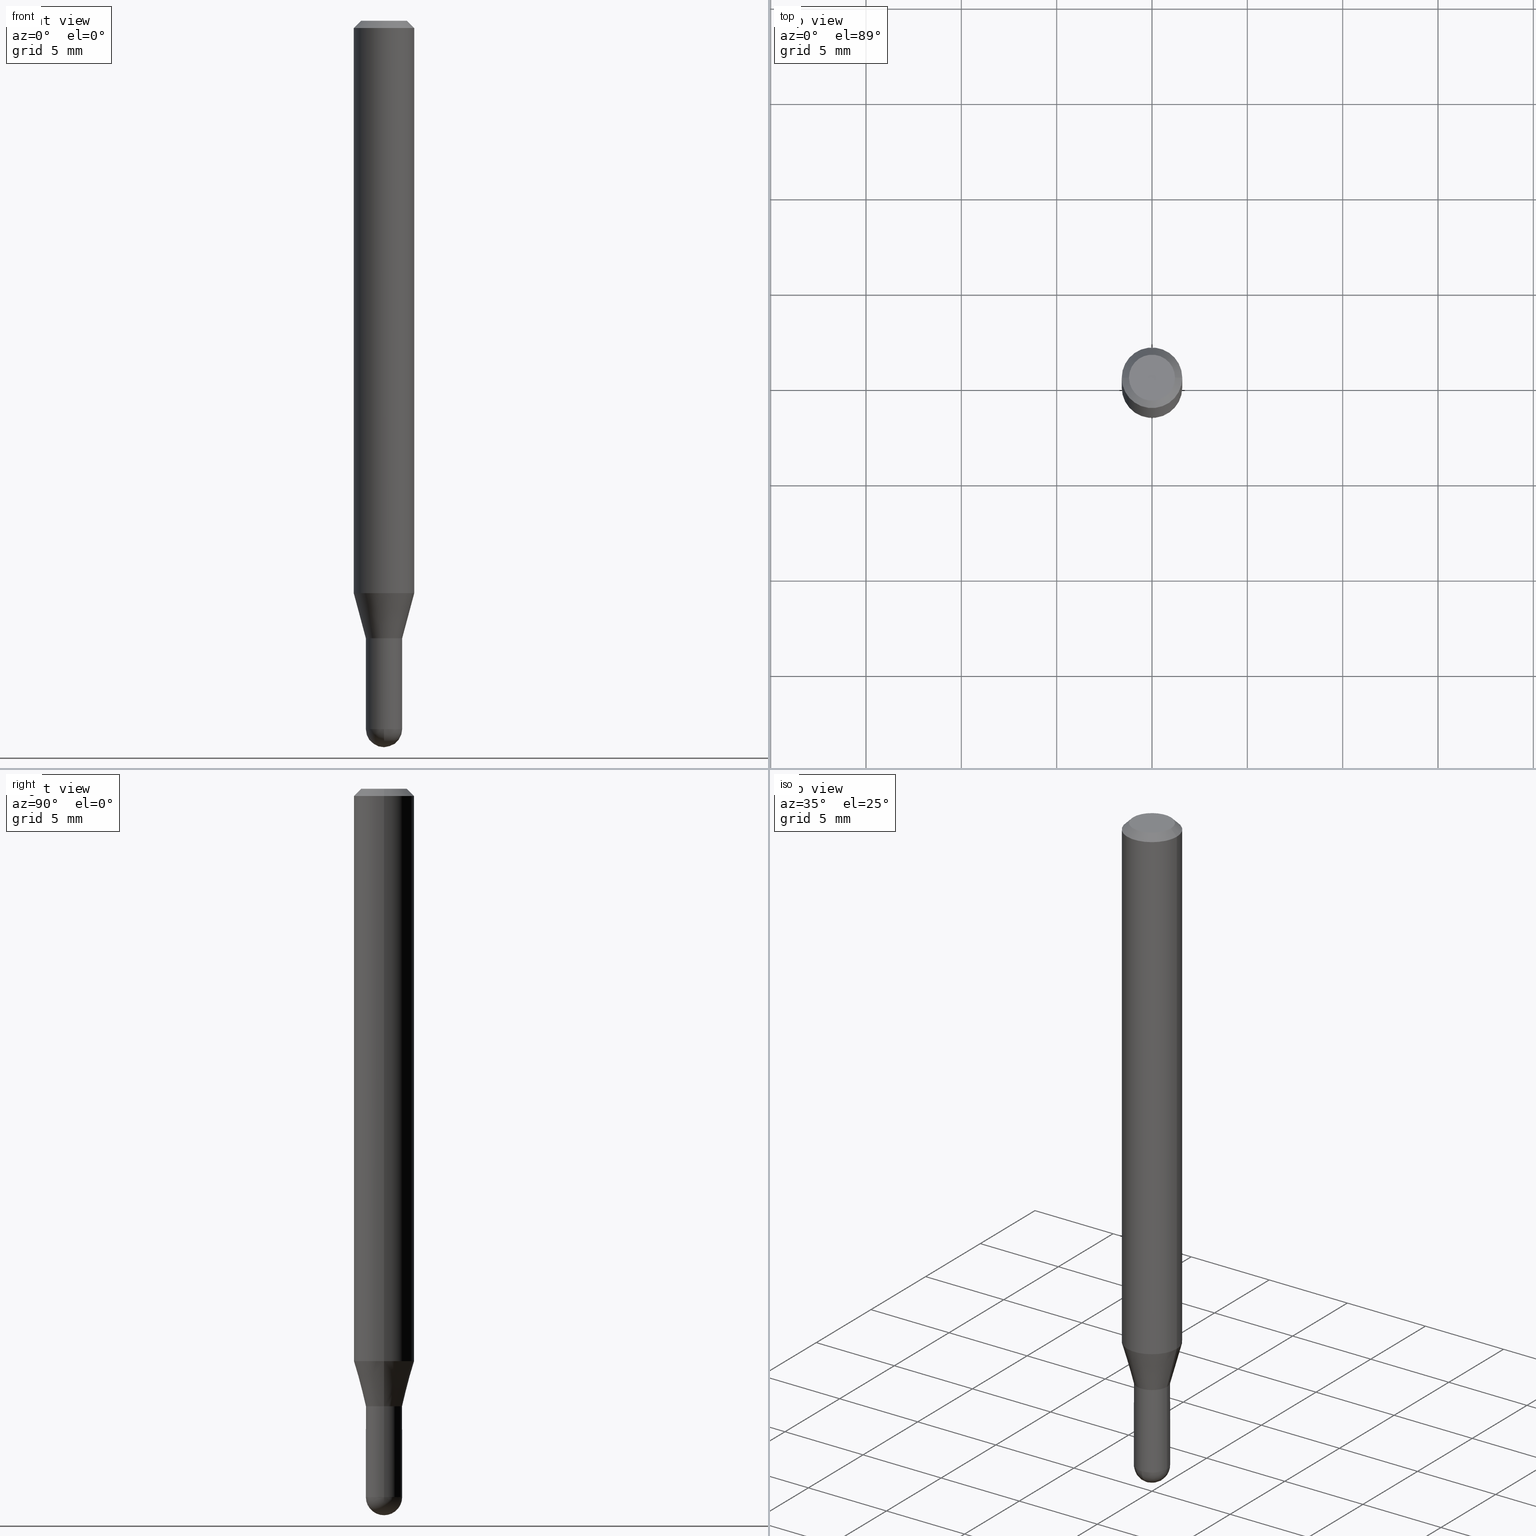
[diagram: canonical four-view strip — front | top / right | iso, engineering-drawing reading convention]
A machine part, canonical four-view strip (front | top / right | iso — engineering-drawing reading convention). The complete STEP part file that produces these views, byte-faithful:
ISO-10303-21;
HEADER;
FILE_DESCRIPTION (( 'STEP AP203' ),
    '1' );
FILE_NAME ('04009.STEP',
    '2024-03-08T18:34:34',
    ( '' ),
    ( '' ),
    'SwSTEP 2.0',
    'SolidWorks 2023',
    '' );
FILE_SCHEMA (( 'CONFIG_CONTROL_DESIGN' ));
ENDSEC;

DATA;
#1 = DIRECTION ( 'NONE',  ( -0.2588190451025291217, 5.211531920934597585E-15, 0.9659258262890659807 ) ) ;
#2 = CC_DESIGN_PERSON_AND_ORGANIZATION_ASSIGNMENT ( #330, #494, ( #432 ) ) ;
#3 = DIRECTION ( 'NONE',  ( -0.7071067811865626718, 7.493145998870409380E-15, 0.7071067811865323627 ) ) ;
#4 = CARTESIAN_POINT ( 'NONE',  ( 3.576498129045762161E-29, -5.106291458058100676E-15, -1.462500000000000133 ) ) ;
#5 = CIRCLE ( 'NONE', #115, 0.06250000000000000000 ) ;
#6 = CARTESIAN_POINT ( 'NONE',  ( 0.03750000000000019984, -4.713499807438247385E-15, -1.275000000000000133 ) ) ;
#7 = CC_DESIGN_APPROVAL ( #361, ( #134 ) ) ;
#8 = VERTEX_POINT ( 'NONE', #198 ) ;
#9 = DIRECTION ( 'NONE',  ( -1.000000000000000000, 6.982962677686266711E-15, 0.000000000000000000 ) ) ;
#10 = ORIENTED_EDGE ( 'NONE', *, *, #408, .T. ) ;
#11 = COORDINATED_UNIVERSAL_TIME_OFFSET ( 5, 0, .BEHIND. ) ;
#12 = DIRECTION ( 'NONE',  ( 6.982962677686265922E-15, 1.000000000000000000, 0.000000000000000000 ) ) ;
#13 = DIRECTION ( 'NONE',  ( -2.445468806185136877E-29, 3.491481338843145188E-15, 1.000000000000000000 ) ) ;
#14 = ADVANCED_FACE ( 'NONE', ( #233 ), #179, .T. ) ;
#15 = EDGE_LOOP ( 'NONE', ( #298, #65, #296, #278 ) ) ;
#16 = CALENDAR_DATE ( 2024, 8, 3 ) ;
#17 = FACE_OUTER_BOUND ( 'NONE', #219, .T. ) ;
#18 = CARTESIAN_POINT ( 'NONE',  ( 0.03750000000000019984, -4.713499807438247385E-15, -1.275000000000000133 ) ) ;
#19 = FACE_OUTER_BOUND ( 'NONE', #290, .T. ) ;
#20 = ORIENTED_EDGE ( 'NONE', *, *, #109, .F. ) ;
#21 = CARTESIAN_POINT ( 'NONE',  ( 0.000000000000000000, 0.000000000000000000, 0.000000000000000000 ) ) ;
#22 = AXIS2_PLACEMENT_3D ( 'NONE', #94, #444, #246 ) ;
#23 = APPLICATION_CONTEXT ( 'configuration controlled 3d designs of mechanical parts and assemblies' ) ;
#24 = LINE ( 'NONE', #370, #190 ) ;
#25 = ORIENTED_EDGE ( 'NONE', *, *, #261, .T. ) ;
#26 = EDGE_CURVE ( 'NONE', #300, #333, #66, .T. ) ;
#27 = PERSON_AND_ORGANIZATION ( #30, #507 ) ;
#28 = ORIENTED_EDGE ( 'NONE', *, *, #131, .T. ) ;
#29 = CARTESIAN_POINT ( 'NONE',  ( 0.000000000000000000, 0.000000000000000000, 0.000000000000000000 ) ) ;
#30 = PERSON ( 'UNSPECIFIED', 'UNSPECIFIED', 'UNSPECIFIED', ('UNSPECIFIED'), ('UNSPECIFIED'), ('UNSPECIFIED') ) ;
#31 = ORIENTED_EDGE ( 'NONE', *, *, #204, .F. ) ;
#32 = DATE_AND_TIME ( #260, #295 ) ;
#33 = VECTOR ( 'NONE', #322, 39.37007874015748143 ) ;
#34 = FACE_OUTER_BOUND ( 'NONE', #82, .T. ) ;
#35 = DIRECTION ( 'NONE',  ( -2.445468806185136597E-29, 3.491481338843145583E-15, 1.000000000000000000 ) ) ;
#36 = ORIENTED_EDGE ( 'NONE', *, *, #385, .T. ) ;
#37 = FACE_OUTER_BOUND ( 'NONE', #15, .T. ) ;
#38 = EDGE_CURVE ( 'NONE', #186, #333, #308, .T. ) ;
#39 = ORIENTED_EDGE ( 'NONE', *, *, #464, .T. ) ;
#40 = AXIS2_PLACEMENT_3D ( 'NONE', #365, #285, #49 ) ;
#41 = CARTESIAN_POINT ( 'NONE',  ( 3.117972727886050170E-29, -4.451638707025012383E-15, -1.275000000000000577 ) ) ;
#42 = LOCAL_TIME ( 13, 34, 34.00000000000000000, #11 ) ;
#43 = ADVANCED_FACE ( 'NONE', ( #34 ), #428, .T. ) ;
#44 = DIRECTION ( 'NONE',  ( 1.000000000000000000, -6.982962677686268288E-15, 4.876176775795935793E-29 ) ) ;
#45 = ADVANCED_FACE ( 'NONE', ( #313 ), #280, .T. ) ;
#46 = CIRCLE ( 'NONE', #284, 0.06250000000000000000 ) ;
#47 = VERTEX_POINT ( 'NONE', #394 ) ;
#48 = PRODUCT_DEFINITION ( 'UNKNOWN', '', #134, #68 ) ;
#49 = DIRECTION ( 'NONE',  ( 1.000000000000000000, -6.982962677686268288E-15, 0.000000000000000000 ) ) ;
#50 = PERSON_AND_ORGANIZATION_ROLE ( 'design_owner' ) ;
#51 = CARTESIAN_POINT ( 'NONE',  ( 3.668203209277721290E-31, -5.237222008264741202E-17, -0.01500000000000006710 ) ) ;
#52 = DIRECTION ( 'NONE',  ( -1.000000000000000000, 7.105427357601001070E-15, -4.926315508542082329E-29 ) ) ;
#53 = CIRCLE ( 'NONE', #303, 0.03750000000000004025 ) ;
#54 = AXIS2_PLACEMENT_3D ( 'NONE', #62, #144, #141 ) ;
#55 = CC_DESIGN_APPROVAL ( #275, ( #432 ) ) ;
#56 = DIRECTION ( 'NONE',  ( 1.000000000000000000, -6.982962677686257244E-15, 0.000000000000000000 ) ) ;
#57 = ORIENTED_EDGE ( 'NONE', *, *, #417, .T. ) ;
#58 = DIRECTION ( 'NONE',  ( -2.445468806185136597E-29, 3.491481338843145583E-15, 1.000000000000000000 ) ) ;
#59 = PERSON_AND_ORGANIZATION ( #30, #507 ) ;
#60 = DIRECTION ( 'NONE',  ( -7.105427357601000281E-15, -1.000000000000000000, 0.000000000000000000 ) ) ;
#61 = EDGE_LOOP ( 'NONE', ( #142, #452, #263, #420 ) ) ;
#62 = CARTESIAN_POINT ( 'NONE',  ( 2.889807382060866226E-29, -4.125879063268994698E-15, -1.181698729810782167 ) ) ;
#63 = CARTESIAN_POINT ( 'NONE',  ( 0.06250000000000000000, -4.364351673553916694E-16, 3.047610484872459871E-30 ) ) ;
#64 = EDGE_CURVE ( 'NONE', #375, #8, #435, .T. ) ;
#65 = ORIENTED_EDGE ( 'NONE', *, *, #118, .T. ) ;
#66 = CIRCLE ( 'NONE', #91, 0.03750000000000019290 ) ;
#67 = CARTESIAN_POINT ( 'NONE',  ( 3.668203209277721290E-31, -5.237222008264741202E-17, -0.01500000000000006710 ) ) ;
#68 = DESIGN_CONTEXT ( 'detailed design', #23, 'design' ) ;
#69 = CYLINDRICAL_SURFACE ( 'NONE', #155, 0.03750000000000019984 ) ;
#70 = ORIENTED_EDGE ( 'NONE', *, *, #218, .T. ) ;
#71 = ORIENTED_EDGE ( 'NONE', *, *, #464, .F. ) ;
#72 = DIRECTION ( 'NONE',  ( -2.445468806185136597E-29, 3.491481338843145583E-15, 1.000000000000000000 ) ) ;
#73 = ORIENTED_EDGE ( 'NONE', *, *, #26, .T. ) ;
#74 = CARTESIAN_POINT ( 'NONE',  ( 3.117972727886049049E-29, -4.451638707025011594E-15, -1.275000000000000133 ) ) ;
#75 = AXIS2_PLACEMENT_3D ( 'NONE', #419, #159, #203 ) ;
#76 = ORIENTED_EDGE ( 'NONE', *, *, #136, .T. ) ;
#77 = EDGE_CURVE ( 'NONE', #93, #407, #175, .T. ) ;
#78 = CONICAL_SURFACE ( 'NONE', #22, 0.03750000000000019984, 0.2617993877991580676 ) ;
#79 = DIRECTION ( 'NONE',  ( 1.000000000000000000, -6.982962677686268288E-15, 0.000000000000000000 ) ) ;
#80 = CARTESIAN_POINT ( 'NONE',  ( -0.03749999999999999861, -4.512511556631519117E-15, -1.275000000000000133 ) ) ;
#81 = PRODUCT_RELATED_PRODUCT_CATEGORY ( 'detail', '', ( #484 ) ) ;
#82 = EDGE_LOOP ( 'NONE', ( #471, #10, #371, #342 ) ) ;
#83 = DIRECTION ( 'NONE',  ( 1.000000000000000000, -6.982962677686254089E-15, 0.000000000000000000 ) ) ;
#84 = FACE_OUTER_BOUND ( 'NONE', #113, .T. ) ;
#85 = VECTOR ( 'NONE', #1, 39.37007874015748143 ) ;
#86 = AXIS2_PLACEMENT_3D ( 'NONE', #483, #103, #400 ) ;
#87 =( CONVERSION_BASED_UNIT ( 'INCH', #431 ) LENGTH_UNIT ( ) NAMED_UNIT ( #318 ) );
#88 = ADVANCED_BREP_SHAPE_REPRESENTATION ( '04009', ( #430, #104, #351 ), #223 ) ;
#89 = EDGE_LOOP ( 'NONE', ( #157, #449, #427, #491 ) ) ;
#90 = EDGE_CURVE ( 'NONE', #121, #147, #53, .T. ) ;
#91 = AXIS2_PLACEMENT_3D ( 'NONE', #163, #72, #462 ) ;
#92 = VECTOR ( 'NONE', #229, 39.37007874015748143 ) ;
#93 = VERTEX_POINT ( 'NONE', #256 ) ;
#94 = CARTESIAN_POINT ( 'NONE',  ( 3.117972727886049049E-29, -4.451638707025011594E-15, -1.275000000000000133 ) ) ;
#95 = EDGE_LOOP ( 'NONE', ( #490, #286 ) ) ;
#96 = PLANE ( 'NONE',  #360 ) ;
#97 = ADVANCED_FACE ( 'NONE', ( #19 ), #448, .T. ) ;
#98 = DIRECTION ( 'NONE',  ( 6.982962677686265922E-15, 1.000000000000000000, 0.000000000000000000 ) ) ;
#99 = AXIS2_PLACEMENT_3D ( 'NONE', #409, #292, #492 ) ;
#100 = ORIENTED_EDGE ( 'NONE', *, *, #90, .F. ) ;
#101 = AXIS2_PLACEMENT_3D ( 'NONE', #392, #130, #44 ) ;
#102 = DATE_AND_TIME ( #224, #480 ) ;
#103 = DIRECTION ( 'NONE',  ( 2.438088387897960049E-29, -3.491481338843145188E-15, -1.000000000000000000 ) ) ;
#104 = MANIFOLD_SOLID_BREP ( 'Body-Move/Copy2[2]', #271 ) ;
#105 = CARTESIAN_POINT ( 'NONE',  ( 1.601787791729603882E-45, -2.286928448837997150E-31, -6.550023405239620703E-17 ) ) ;
#106 = EDGE_LOOP ( 'NONE', ( #329, #474, #481, #399 ) ) ;
#107 = DATE_AND_TIME ( #443, #209 ) ;
#108 = CARTESIAN_POINT ( 'NONE',  ( -0.06250000000000000000, -3.681789853418932082E-15, -1.181698729810782167 ) ) ;
#109 = EDGE_CURVE ( 'NONE', #441, #116, #348, .T. ) ;
#110 = ORIENTED_EDGE ( 'NONE', *, *, #38, .F. ) ;
#111 = COORDINATED_UNIVERSAL_TIME_OFFSET ( 5, 0, .BEHIND. ) ;
#112 = DIRECTION ( 'NONE',  ( -2.445468806185136597E-29, 3.491481338843145583E-15, 1.000000000000000000 ) ) ;
#113 = EDGE_LOOP ( 'NONE', ( #71, #362, #25, #274, #20 ) ) ;
#114 = DIRECTION ( 'NONE',  ( 1.000000000000000000, -6.982962677686254089E-15, 0.000000000000000000 ) ) ;
#115 = AXIS2_PLACEMENT_3D ( 'NONE', #145, #193, #341 ) ;
#116 = VERTEX_POINT ( 'NONE', #390 ) ;
#117 = CARTESIAN_POINT ( 'NONE',  ( 3.576498129045762161E-29, -5.106291458058100676E-15, -1.462500000000000133 ) ) ;
#118 = EDGE_CURVE ( 'NONE', #305, #493, #469, .T. ) ;
#119 = DIRECTION ( 'NONE',  ( 1.000000000000000000, -6.982962677686280121E-15, 0.000000000000000000 ) ) ;
#120 = PLANE ( 'NONE',  #324 ) ;
#121 = VERTEX_POINT ( 'NONE', #461 ) ;
#122 = LINE ( 'NONE', #468, #436 ) ;
#123 = AXIS2_PLACEMENT_3D ( 'NONE', #440, #221, #98 ) ;
#124 = LINE ( 'NONE', #320, #180 ) ;
#125 = EDGE_CURVE ( 'NONE', #8, #375, #472, .T. ) ;
#126 = DIRECTION ( 'NONE',  ( -2.445468806185136877E-29, 3.491481338843145188E-15, 1.000000000000000000 ) ) ;
#127 = AXIS2_PLACEMENT_3D ( 'NONE', #188, #349, #499 ) ;
#128 = AXIS2_PLACEMENT_3D ( 'NONE', #470, #510, #467 ) ;
#129 = CIRCLE ( 'NONE', #272, 0.03749999999999993616 ) ;
#130 = DIRECTION ( 'NONE',  ( -2.445468806185136597E-29, 3.491481338843145583E-15, 1.000000000000000000 ) ) ;
#131 = EDGE_CURVE ( 'NONE', #415, #459, #442, .T. ) ;
#132 = FACE_OUTER_BOUND ( 'NONE', #201, .T. ) ;
#133 = AXIS2_PLACEMENT_3D ( 'NONE', #105, #255, #336 ) ;
#134 = PRODUCT_DEFINITION_FORMATION_WITH_SPECIFIED_SOURCE ( 'ANY', '', #484, .NOT_KNOWN. ) ;
#135 = DIRECTION ( 'NONE',  ( 1.000000000000000000, -6.982962677686265922E-15, 4.876176775795935232E-29 ) ) ;
#136 = EDGE_CURVE ( 'NONE', #344, #493, #412, .T. ) ;
#137 = CARTESIAN_POINT ( 'NONE',  ( -0.03699999999999999817, -4.188737894793775870E-15, -1.275000000000000577 ) ) ;
#138 = FACE_OUTER_BOUND ( 'NONE', #194, .T. ) ;
#139 = EDGE_LOOP ( 'NONE', ( #410, #267, #434, #477 ) ) ;
#140 = DATE_TIME_ROLE ( 'classification_date' ) ;
#141 = DIRECTION ( 'NONE',  ( 1.000000000000000000, -6.982962677686270655E-15, 0.000000000000000000 ) ) ;
#142 = ORIENTED_EDGE ( 'NONE', *, *, #226, .T. ) ;
#143 = CIRCLE ( 'NONE', #405, 0.06250000000000000000 ) ;
#144 = DIRECTION ( 'NONE',  ( -2.445468806185136597E-29, 3.491481338843145583E-15, 1.000000000000000000 ) ) ;
#145 = CARTESIAN_POINT ( 'NONE',  ( 2.889807382060866226E-29, -4.125879063268994698E-15, -1.181698729810782167 ) ) ;
#146 = PRODUCT_DEFINITION_SHAPE ( 'NONE', 'NONE',  #48 ) ;
#147 = VERTEX_POINT ( 'NONE', #288 ) ;
#148 = APPROVAL_STATUS ( 'not_yet_approved' ) ;
#149 = DIRECTION ( 'NONE',  ( 2.445468806185136597E-29, -3.491481338843145583E-15, -1.000000000000000000 ) ) ;
#150 = ORIENTED_EDGE ( 'NONE', *, *, #226, .F. ) ;
#151 = DATE_TIME_ROLE ( 'creation_date' ) ;
#152 = ORIENTED_EDGE ( 'NONE', *, *, #131, .F. ) ;
#153 = CARTESIAN_POINT ( 'NONE',  ( 0.000000000000000000, 0.000000000000000000, 0.000000000000000000 ) ) ;
#154 = ORIENTED_EDGE ( 'NONE', *, *, #109, .T. ) ;
#155 = AXIS2_PLACEMENT_3D ( 'NONE', #29, #343, #455 ) ;
#156 = CC_DESIGN_APPROVAL ( #503, ( #48 ) ) ;
#157 = ORIENTED_EDGE ( 'NONE', *, *, #64, .T. ) ;
#158 = EDGE_CURVE ( 'NONE', #375, #333, #287, .T. ) ;
#159 = DIRECTION ( 'NONE',  ( -2.445468806185136597E-29, 3.491481338843145583E-15, 1.000000000000000000 ) ) ;
#160 = CARTESIAN_POINT ( 'NONE',  ( 3.576498129045762161E-29, -5.106291458058100676E-15, -1.462500000000000133 ) ) ;
#161 = DIRECTION ( 'NONE',  ( 0.7071067811865475727, -7.319954787623256045E-15, -0.7071067811865474617 ) ) ;
#162 = CC_DESIGN_PERSON_AND_ORGANIZATION_ASSIGNMENT ( #197, #215, ( #48 ) ) ;
#163 = CARTESIAN_POINT ( 'NONE',  ( 3.116749993482957368E-29, -4.449892966355590090E-15, -1.274500000000000188 ) ) ;
#164 = EDGE_CURVE ( 'NONE', #121, #459, #355, .T. ) ;
#165 = AXIS2_PLACEMENT_3D ( 'NONE', #21, #479, #135 ) ;
#166 = DIRECTION ( 'NONE',  ( -2.445468806185136597E-29, 3.491481338843145583E-15, 1.000000000000000000 ) ) ;
#167 = SHAPE_DEFINITION_REPRESENTATION ( #146, #88 ) ;
#168 = DIRECTION ( 'NONE',  ( 1.000000000000000000, -6.982962677686268288E-15, 4.876176775795935793E-29 ) ) ;
#169 = EDGE_LOOP ( 'NONE', ( #496, #70, #73, #110 ) ) ;
#170 = DIRECTION ( 'NONE',  ( -2.445468806185136597E-29, 3.491481338843145583E-15, 1.000000000000000000 ) ) ;
#171 = CYLINDRICAL_SURFACE ( 'NONE', #101, 0.03749999999999996392 ) ;
#172 = AXIS2_PLACEMENT_3D ( 'NONE', #4, #247, #373 ) ;
#173 = CIRCLE ( 'NONE', #208, 0.03750000000000019984 ) ;
#174 = ADVANCED_FACE ( 'NONE', ( #138 ), #386, .T. ) ;
#175 = LINE ( 'NONE', #363, #85 ) ;
#176 = CC_DESIGN_PERSON_AND_ORGANIZATION_ASSIGNMENT ( #376, #345, ( #134 ) ) ;
#177 = ADVANCED_FACE ( 'NONE', ( #301 ), #96, .F. ) ;
#178 = DIRECTION ( 'NONE',  ( 0.7071067811865626718, -2.468850131082415227E-15, 0.7071067811865323627 ) ) ;
#179 = CONICAL_SURFACE ( 'NONE', #75, 0.03750000000000019984, 0.2617993877991580676 ) ;
#180 = VECTOR ( 'NONE', #126, 39.37007874015748143 ) ;
#181 = SPHERICAL_SURFACE ( 'NONE', #264, 0.03750000000000004025 ) ;
#182 = CARTESIAN_POINT ( 'NONE',  ( 3.576498129045762161E-29, -5.106291458058100676E-15, -1.462500000000000133 ) ) ;
#183 = ORIENTED_EDGE ( 'NONE', *, *, #310, .F. ) ;
#184 = APPROVAL_DATE_TIME ( #107, #503 ) ;
#185 = FACE_OUTER_BOUND ( 'NONE', #413, .T. ) ;
#186 = VERTEX_POINT ( 'NONE', #18 ) ;
#187 = SPHERICAL_SURFACE ( 'NONE', #511, 0.03750000000000004025 ) ;
#188 = CARTESIAN_POINT ( 'NONE',  ( 0.000000000000000000, 0.000000000000000000, 0.000000000000000000 ) ) ;
#189 = ORIENTED_EDGE ( 'NONE', *, *, #476, .F. ) ;
#190 = VECTOR ( 'NONE', #402, 39.37007874015748143 ) ;
#191 = CALENDAR_DATE ( 2024, 8, 3 ) ;
#192 = CARTESIAN_POINT ( 'NONE',  ( -0.06250000000000000000, -1.645036431825758273E-15, -0.01500000000000006710 ) ) ;
#193 = DIRECTION ( 'NONE',  ( -2.445468806185136597E-29, 3.491481338843145583E-15, 1.000000000000000000 ) ) ;
#194 = EDGE_LOOP ( 'NONE', ( #257, #189, #446, #57 ) ) ;
#195 = CARTESIAN_POINT ( 'NONE',  ( 3.533226714813284763E-29, -5.168258586094955847E-15, -1.462500000000000133 ) ) ;
#196 = ORIENTED_EDGE ( 'NONE', *, *, #164, .T. ) ;
#197 = PERSON_AND_ORGANIZATION ( #30, #507 ) ;
#198 = CARTESIAN_POINT ( 'NONE',  ( -0.03699999999999999817, -4.186088667619663091E-15, -1.275000000000000577 ) ) ;
#199 = CIRCLE ( 'NONE', #456, 0.04749999999999999362 ) ;
#200 = APPROVAL_PERSON_ORGANIZATION ( #369, #361, #453 ) ;
#201 = EDGE_LOOP ( 'NONE', ( #225, #150, #216, #380 ) ) ;
#202 = DIRECTION ( 'NONE',  ( 1.000000000000000000, -6.982962677686266711E-15, 4.876176775795935793E-29 ) ) ;
#203 = DIRECTION ( 'NONE',  ( 1.000000000000000000, -6.982962677686257244E-15, 0.000000000000000000 ) ) ;
#204 = EDGE_CURVE ( 'NONE', #459, #269, #398, .T. ) ;
#205 = AXIS2_PLACEMENT_3D ( 'NONE', #182, #297, #451 ) ;
#206 = APPROVAL_PERSON_ORGANIZATION ( #357, #503, #508 ) ;
#207 = EDGE_CURVE ( 'NONE', #93, #186, #173, .T. ) ;
#208 = AXIS2_PLACEMENT_3D ( 'NONE', #327, #112, #56 ) ;
#209 = LOCAL_TIME ( 13, 34, 34.00000000000000000, #426 ) ;
#210 = ORIENTED_EDGE ( 'NONE', *, *, #366, .F. ) ;
#211 = CARTESIAN_POINT ( 'NONE',  ( 3.533226714813284763E-29, -5.168258586094955847E-15, -1.462500000000000133 ) ) ;
#212 = ORIENTED_EDGE ( 'NONE', *, *, #232, .T. ) ;
#213 = CC_DESIGN_DATE_AND_TIME_ASSIGNMENT ( #482, #140, ( #432 ) ) ;
#214 = VECTOR ( 'NONE', #377, 39.37007874015748143 ) ;
#215 = PERSON_AND_ORGANIZATION_ROLE ( 'creator' ) ;
#216 = ORIENTED_EDGE ( 'NONE', *, *, #38, .T. ) ;
#217 = CARTESIAN_POINT ( 'NONE',  ( 0.06250000000000000000, -4.562314230624385579E-15, -1.181698729810782167 ) ) ;
#218 = EDGE_CURVE ( 'NONE', #93, #300, #24, .T. ) ;
#219 = EDGE_LOOP ( 'NONE', ( #100, #196, #152, #384 ) ) ;
#220 = CARTESIAN_POINT ( 'NONE',  ( -0.06250000000000000000, 4.440892098500626162E-16, -3.074334431409316114E-30 ) ) ;
#221 = DIRECTION ( 'NONE',  ( 1.000000000000000000, -6.982962677686265922E-15, 4.883557194083112340E-29 ) ) ;
#222 = ORIENTED_EDGE ( 'NONE', *, *, #408, .F. ) ;
#223 =( GEOMETRIC_REPRESENTATION_CONTEXT ( 3 ) GLOBAL_UNCERTAINTY_ASSIGNED_CONTEXT ( ( #450 ) ) GLOBAL_UNIT_ASSIGNED_CONTEXT ( ( #87, #312, #466 ) ) REPRESENTATION_CONTEXT ( 'NONE', 'WORKASPACE' ) );
#224 = CALENDAR_DATE ( 2024, 8, 3 ) ;
#225 = ORIENTED_EDGE ( 'NONE', *, *, #218, .F. ) ;
#226 = EDGE_CURVE ( 'NONE', #186, #93, #241, .T. ) ;
#227 = COORDINATED_UNIVERSAL_TIME_OFFSET ( 5, 0, .BEHIND. ) ;
#228 = ORIENTED_EDGE ( 'NONE', *, *, #90, .T. ) ;
#229 = DIRECTION ( 'NONE',  ( -0.7071067811865475727, 2.468850131082257455E-15, -0.7071067811865474617 ) ) ;
#230 = ORIENTED_EDGE ( 'NONE', *, *, #164, .F. ) ;
#231 = DIRECTION ( 'NONE',  ( -2.445468806185136597E-29, 3.491481338843145583E-15, 1.000000000000000000 ) ) ;
#232 = EDGE_CURVE ( 'NONE', #305, #47, #315, .T. ) ;
#233 = FACE_OUTER_BOUND ( 'NONE', #139, .T. ) ;
#234 = LINE ( 'NONE', #306, #92 ) ;
#235 = APPROVAL_STATUS ( 'not_yet_approved' ) ;
#236 = CARTESIAN_POINT ( 'NONE',  ( 0.04749999999999999362, -4.035134999187580595E-16, -6.550023405239363091E-17 ) ) ;
#237 = DIRECTION ( 'NONE',  ( -2.445468806185136597E-29, 3.491481338843145583E-15, 1.000000000000000000 ) ) ;
#238 = CARTESIAN_POINT ( 'NONE',  ( 1.601787791729603882E-45, -2.286928448837997150E-31, -6.550023405239620703E-17 ) ) ;
#239 = AXIS2_PLACEMENT_3D ( 'NONE', #41, #359, #325 ) ;
#240 = EDGE_LOOP ( 'NONE', ( #338, #39, #210, #183, #28 ) ) ;
#241 = CIRCLE ( 'NONE', #396, 0.03750000000000019984 ) ;
#242 = ORIENTED_EDGE ( 'NONE', *, *, #476, .T. ) ;
#243 = CIRCLE ( 'NONE', #40, 0.03749999999999999861 ) ;
#244 = EDGE_CURVE ( 'NONE', #344, #407, #5, .T. ) ;
#245 = CARTESIAN_POINT ( 'NONE',  ( 0.03750000000000019290, -4.711754066768825881E-15, -1.274500000000000188 ) ) ;
#246 = DIRECTION ( 'NONE',  ( 1.000000000000000000, -6.982962677686257244E-15, 0.000000000000000000 ) ) ;
#247 = DIRECTION ( 'NONE',  ( -2.445468806185136597E-29, 3.491481338843145583E-15, 1.000000000000000000 ) ) ;
#248 = DIRECTION ( 'NONE',  ( -1.000000000000000000, 6.982962677686265922E-15, -4.883557194083112901E-29 ) ) ;
#249 = DIRECTION ( 'NONE',  ( 1.000000000000000000, -6.982962677686265922E-15, 4.876176775795935793E-29 ) ) ;
#250 = VECTOR ( 'NONE', #178, 39.37007874015748143 ) ;
#251 = EDGE_LOOP ( 'NONE', ( #230, #228, #485, #31 ) ) ;
#252 = APPROVAL_STATUS ( 'not_yet_approved' ) ;
#253 = DIRECTION ( 'NONE',  ( 6.982962677686265922E-15, 1.000000000000000000, 0.000000000000000000 ) ) ;
#254 = ADVANCED_FACE ( 'NONE', ( #37 ), #379, .T. ) ;
#255 = DIRECTION ( 'NONE',  ( -2.445468806185136597E-29, 3.491481338843145583E-15, 1.000000000000000000 ) ) ;
#256 = CARTESIAN_POINT ( 'NONE',  ( -0.03750000000000019984, -3.933487517266952343E-15, -1.275000000000000133 ) ) ;
#257 = ORIENTED_EDGE ( 'NONE', *, *, #118, .F. ) ;
#258 = COORDINATED_UNIVERSAL_TIME_OFFSET ( 5, 0, .BEHIND. ) ;
#259 = EDGE_LOOP ( 'NONE', ( #242, #212 ) ) ;
#260 = CALENDAR_DATE ( 2024, 8, 3 ) ;
#261 = EDGE_CURVE ( 'NONE', #147, #415, #129, .T. ) ;
#262 = VECTOR ( 'NONE', #387, 39.37007874015748143 ) ;
#263 = ORIENTED_EDGE ( 'NONE', *, *, #244, .F. ) ;
#264 = AXIS2_PLACEMENT_3D ( 'NONE', #211, #340, #12 ) ;
#265 = LOCAL_TIME ( 13, 34, 34.00000000000000000, #111 ) ;
#266 = CARTESIAN_POINT ( 'NONE',  ( 3.668203209277721290E-31, -5.237222008264741202E-17, -0.01500000000000006710 ) ) ;
#267 = ORIENTED_EDGE ( 'NONE', *, *, #207, .T. ) ;
#268 = DIRECTION ( 'NONE',  ( -2.445468806185136597E-29, 3.491481338843145583E-15, 1.000000000000000000 ) ) ;
#269 = VERTEX_POINT ( 'NONE', #354 ) ;
#270 = CARTESIAN_POINT ( 'NONE',  ( -0.03750000000000019290, -4.183439440445551890E-15, -1.274500000000000188 ) ) ;
#271 = CLOSED_SHELL ( 'NONE', ( #319, #424, #254, #43, #401, #14, #97, #174, #438, #177, #45, #339 ) ) ;
#272 = AXIS2_PLACEMENT_3D ( 'NONE', #117, #268, #418 ) ;
#273 = DIRECTION ( 'NONE',  ( 1.000000000000000000, -6.982962677686266711E-15, 0.000000000000000000 ) ) ;
#274 = ORIENTED_EDGE ( 'NONE', *, *, #310, .T. ) ;
#275 = APPROVAL ( #148, 'UNSPECIFIED' ) ;
#276 = APPLICATION_PROTOCOL_DEFINITION ( 'international standard', 'config_control_design', 1994, #364 ) ;
#277 = FACE_OUTER_BOUND ( 'NONE', #240, .T. ) ;
#278 = ORIENTED_EDGE ( 'NONE', *, *, #457, .F. ) ;
#279 = CARTESIAN_POINT ( 'NONE',  ( 2.618611004132704018E-16, 0.03749999999999485689, -1.462500000000000133 ) ) ;
#280 = CONICAL_SURFACE ( 'NONE', #395, 0.03699999999999999817, 0.7853981633974697063 ) ;
#281 = AXIS2_PLACEMENT_3D ( 'NONE', #160, #460, #119 ) ;
#282 = APPROVAL_PERSON_ORGANIZATION ( #27, #275, #299 ) ;
#283 =( LENGTH_UNIT ( ) NAMED_UNIT ( * ) SI_UNIT ( $, .METRE. ) );
#284 = AXIS2_PLACEMENT_3D ( 'NONE', #67, #231, #463 ) ;
#285 = DIRECTION ( 'NONE',  ( -2.445468806185136597E-29, 3.491481338843145583E-15, 1.000000000000000000 ) ) ;
#286 = ORIENTED_EDGE ( 'NONE', *, *, #125, .F. ) ;
#287 = LINE ( 'NONE', #368, #250 ) ;
#288 = CARTESIAN_POINT ( 'NONE',  ( -2.664535259100019132E-16, -0.03750000000000512645, -1.462500000000000133 ) ) ;
#289 = EDGE_CURVE ( 'NONE', #269, #147, #478, .T. ) ;
#290 = EDGE_LOOP ( 'NONE', ( #222, #36, #76, #302 ) ) ;
#291 = FACE_OUTER_BOUND ( 'NONE', #61, .T. ) ;
#292 = DIRECTION ( 'NONE',  ( -2.445468806185136597E-29, 3.491481338843145583E-15, 1.000000000000000000 ) ) ;
#293 = CIRCLE ( 'NONE', #54, 0.06250000000000000000 ) ;
#294 = MECHANICAL_CONTEXT ( 'NONE', #364, 'mechanical' ) ;
#295 = LOCAL_TIME ( 13, 34, 34.00000000000000000, #227 ) ;
#296 = ORIENTED_EDGE ( 'NONE', *, *, #433, .T. ) ;
#297 = DIRECTION ( 'NONE',  ( -2.445468806185136597E-29, 3.491481338843145583E-15, 1.000000000000000000 ) ) ;
#298 = ORIENTED_EDGE ( 'NONE', *, *, #232, .F. ) ;
#299 = APPROVAL_ROLE ( '' ) ;
#300 = VERTEX_POINT ( 'NONE', #270 ) ;
#301 = FACE_OUTER_BOUND ( 'NONE', #95, .T. ) ;
#302 = ORIENTED_EDGE ( 'NONE', *, *, #417, .F. ) ;
#303 = AXIS2_PLACEMENT_3D ( 'NONE', #195, #52, #60 ) ;
#304 = DIRECTION ( 'NONE',  ( 0.000000000000000000, 0.000000000000000000, 1.000000000000000000 ) ) ;
#305 = VERTEX_POINT ( 'NONE', #236 ) ;
#306 = CARTESIAN_POINT ( 'NONE',  ( -0.06250000000000000000, 3.840629472727442451E-16, -0.01500000000000006710 ) ) ;
#307 = DIRECTION ( 'NONE',  ( -1.000000000000000000, 6.982962677686266711E-15, 0.000000000000000000 ) ) ;
#308 = LINE ( 'NONE', #353, #262 ) ;
#309 = CARTESIAN_POINT ( 'NONE',  ( 0.03749999999999993616, -5.040826182954790742E-15, -1.462500000000000133 ) ) ;
#310 = EDGE_CURVE ( 'NONE', #415, #116, #122, .T. ) ;
#311 = APPROVAL_DATE_TIME ( #32, #275 ) ;
#312 =( NAMED_UNIT ( * ) PLANE_ANGLE_UNIT ( ) SI_UNIT ( $, .RADIAN. ) );
#313 = FACE_OUTER_BOUND ( 'NONE', #106, .T. ) ;
#314 = CLOSED_SHELL ( 'NONE', ( #502, #321, #352, #374, #512 ) ) ;
#315 = CIRCLE ( 'NONE', #133, 0.04749999999999999362 ) ;
#316 = CC_DESIGN_DATE_AND_TIME_ASSIGNMENT ( #102, #151, ( #48 ) ) ;
#317 = FACE_OUTER_BOUND ( 'NONE', #169, .T. ) ;
#318 = DIMENSIONAL_EXPONENTS ( 1.000000000000000000, 0.000000000000000000, 0.000000000000000000, 0.000000000000000000, 0.000000000000000000, 0.000000000000000000, 0.000000000000000000 ) ;
#319 = ADVANCED_FACE ( 'NONE', ( #317 ), #69, .F. ) ;
#320 = CARTESIAN_POINT ( 'NONE',  ( -0.03749999999999996392, 2.664535259100373133E-16, -1.844600658845588057E-30 ) ) ;
#321 = ADVANCED_FACE ( 'NONE', ( #495 ), #181, .T. ) ;
#322 = DIRECTION ( 'NONE',  ( 0.2588190451025291217, 1.565188264969560831E-15, 0.9659258262890659807 ) ) ;
#323 = AXIS2_PLACEMENT_3D ( 'NONE', #422, #237, #202 ) ;
#324 = AXIS2_PLACEMENT_3D ( 'NONE', #346, #497, #423 ) ;
#325 = DIRECTION ( 'NONE',  ( 1.000000000000000000, -6.982962677686254089E-15, 0.000000000000000000 ) ) ;
#326 = LINE ( 'NONE', #137, #498 ) ;
#327 = CARTESIAN_POINT ( 'NONE',  ( 3.117972727886049049E-29, -4.451638707025011594E-15, -1.275000000000000133 ) ) ;
#328 = EDGE_CURVE ( 'NONE', #186, #344, #331, .T. ) ;
#329 = ORIENTED_EDGE ( 'NONE', *, *, #356, .F. ) ;
#330 = PERSON_AND_ORGANIZATION ( #30, #507 ) ;
#331 = LINE ( 'NONE', #6, #33 ) ;
#332 = CARTESIAN_POINT ( 'NONE',  ( 3.117972727886049049E-29, -4.451638707025011594E-15, -1.275000000000000133 ) ) ;
#333 = VERTEX_POINT ( 'NONE', #245 ) ;
#334 = PERSON_AND_ORGANIZATION ( #30, #507 ) ;
#335 = CARTESIAN_POINT ( 'NONE',  ( 3.533226714813284763E-29, -5.168258586094955847E-15, -1.462500000000000133 ) ) ;
#336 = DIRECTION ( 'NONE',  ( 1.000000000000000000, -6.982962677686267499E-15, 4.868699817970219885E-29 ) ) ;
#337 = VECTOR ( 'NONE', #13, 39.37007874015748143 ) ;
#338 = ORIENTED_EDGE ( 'NONE', *, *, #204, .T. ) ;
#339 = ADVANCED_FACE ( 'NONE', ( #132 ), #437, .F. ) ;
#340 = DIRECTION ( 'NONE',  ( -1.000000000000000000, 6.982962677686265922E-15, -4.883557194083112901E-29 ) ) ;
#341 = DIRECTION ( 'NONE',  ( 1.000000000000000000, -6.982962677686270655E-15, 0.000000000000000000 ) ) ;
#342 = ORIENTED_EDGE ( 'NONE', *, *, #136, .F. ) ;
#343 = DIRECTION ( 'NONE',  ( -2.445468806185136597E-29, 3.491481338843145583E-15, 1.000000000000000000 ) ) ;
#344 = VERTEX_POINT ( 'NONE', #217 ) ;
#345 = PERSON_AND_ORGANIZATION_ROLE ( 'creator' ) ;
#346 = CARTESIAN_POINT ( 'NONE',  ( 3.316907271900976096E-16, 0.04749999999999999362, -1.985954806212475000E-16 ) ) ;
#347 = CARTESIAN_POINT ( 'NONE',  ( 3.668203209277721290E-31, -5.237222008264741202E-17, -0.01500000000000006710 ) ) ;
#348 = CIRCLE ( 'NONE', #403, 0.03749999999999999861 ) ;
#349 = DIRECTION ( 'NONE',  ( -2.445468806185136597E-29, 3.491481338843145583E-15, 1.000000000000000000 ) ) ;
#350 = CIRCLE ( 'NONE', #128, 0.03750000000000019290 ) ;
#351 = AXIS2_PLACEMENT_3D ( 'NONE', #153, #304, #458 ) ;
#352 = ADVANCED_FACE ( 'NONE', ( #185 ), #439, .F. ) ;
#353 = CARTESIAN_POINT ( 'NONE',  ( 0.03750000000000019984, -2.618611004132363822E-16, 1.828566290923485381E-30 ) ) ;
#354 = CARTESIAN_POINT ( 'NONE',  ( -0.03749999999999993616, -4.512511556631519117E-15, -1.462500000000000133 ) ) ;
#355 = CIRCLE ( 'NONE', #123, 0.03750000000000004025 ) ;
#356 = EDGE_CURVE ( 'NONE', #8, #300, #326, .T. ) ;
#357 = PERSON_AND_ORGANIZATION ( #30, #507 ) ;
#358 = DIRECTION ( 'NONE',  ( 1.000000000000000000, -6.982962677686267499E-15, 4.868699817970219885E-29 ) ) ;
#359 = DIRECTION ( 'NONE',  ( -2.445468806185136597E-29, 3.491481338843145583E-15, 1.000000000000000000 ) ) ;
#360 = AXIS2_PLACEMENT_3D ( 'NONE', #447, #378, #249 ) ;
#361 = APPROVAL ( #252, 'UNSPECIFIED' ) ;
#362 = ORIENTED_EDGE ( 'NONE', *, *, #289, .T. ) ;
#363 = CARTESIAN_POINT ( 'NONE',  ( -0.03750000000000019984, -4.185185181114972604E-15, -1.275000000000000133 ) ) ;
#364 = APPLICATION_CONTEXT ( 'configuration controlled 3d designs of mechanical parts and assemblies' ) ;
#365 = CARTESIAN_POINT ( 'NONE',  ( 3.117972727886049049E-29, -4.451638707025011594E-15, -1.275000000000000133 ) ) ;
#366 = EDGE_CURVE ( 'NONE', #116, #441, #243, .T. ) ;
#367 = CONICAL_SURFACE ( 'NONE', #506, 0.03699999999999999817, 0.7853981633974697063 ) ;
#368 = CARTESIAN_POINT ( 'NONE',  ( 0.03699999999999999817, -4.710008326099403589E-15, -1.275000000000000577 ) ) ;
#369 = PERSON_AND_ORGANIZATION ( #30, #507 ) ;
#370 = CARTESIAN_POINT ( 'NONE',  ( -0.03750000000000019984, 2.664535259100389897E-16, -1.844600658845599617E-30 ) ) ;
#371 = ORIENTED_EDGE ( 'NONE', *, *, #433, .F. ) ;
#372 = APPROVAL_DATE_TIME ( #381, #361 ) ;
#373 = DIRECTION ( 'NONE',  ( 1.000000000000000000, -6.982962677686280121E-15, 0.000000000000000000 ) ) ;
#374 = ADVANCED_FACE ( 'NONE', ( #17 ), #187, .T. ) ;
#375 = VERTEX_POINT ( 'NONE', #487 ) ;
#376 = PERSON_AND_ORGANIZATION ( #30, #507 ) ;
#377 = DIRECTION ( 'NONE',  ( -2.445468806185136877E-29, 3.491481338843145188E-15, 1.000000000000000000 ) ) ;
#378 = DIRECTION ( 'NONE',  ( -2.438088387897960049E-29, 3.491481338843145188E-15, 1.000000000000000000 ) ) ;
#379 = CONICAL_SURFACE ( 'NONE', #465, 0.06250000000000000000, 0.7853981633974483900 ) ;
#380 = ORIENTED_EDGE ( 'NONE', *, *, #509, .T. ) ;
#381 = DATE_AND_TIME ( #16, #42 ) ;
#382 = ORIENTED_EDGE ( 'NONE', *, *, #366, .T. ) ;
#383 = DIRECTION ( 'NONE',  ( 2.445468806185136597E-29, -3.491481338843145583E-15, -1.000000000000000000 ) ) ;
#384 = ORIENTED_EDGE ( 'NONE', *, *, #261, .F. ) ;
#385 = EDGE_CURVE ( 'NONE', #407, #344, #293, .T. ) ;
#386 = CONICAL_SURFACE ( 'NONE', #421, 0.06250000000000000000, 0.7853981633974483900 ) ;
#387 = DIRECTION ( 'NONE',  ( -2.445468806185136877E-29, 3.491481338843145188E-15, 1.000000000000000000 ) ) ;
#388 = CARTESIAN_POINT ( 'NONE',  ( 3.117972727886050170E-29, -4.451638707025012383E-15, -1.275000000000000577 ) ) ;
#389 = DIRECTION ( 'NONE',  ( -2.445468806185136597E-29, 3.491481338843145583E-15, 1.000000000000000000 ) ) ;
#390 = CARTESIAN_POINT ( 'NONE',  ( 0.03749999999999999861, -4.713499807438246596E-15, -1.275000000000000133 ) ) ;
#391 = CC_DESIGN_PERSON_AND_ORGANIZATION_ASSIGNMENT ( #59, #50, ( #484 ) ) ;
#392 = CARTESIAN_POINT ( 'NONE',  ( 0.000000000000000000, 0.000000000000000000, 0.000000000000000000 ) ) ;
#393 = DIRECTION ( 'NONE',  ( -2.445468806185136597E-29, 3.491481338843145583E-15, 1.000000000000000000 ) ) ;
#394 = CARTESIAN_POINT ( 'NONE',  ( -0.04749999999999999362, 3.578768372314208041E-16, -6.550023405239862292E-17 ) ) ;
#395 = AXIS2_PLACEMENT_3D ( 'NONE', #501, #166, #83 ) ;
#396 = AXIS2_PLACEMENT_3D ( 'NONE', #332, #58, #445 ) ;
#397 = CARTESIAN_POINT ( 'NONE',  ( 0.06250000000000000000, -4.888073874380391431E-16, -0.01500000000000006710 ) ) ;
#398 = CIRCLE ( 'NONE', #205, 0.03749999999999993616 ) ;
#399 = ORIENTED_EDGE ( 'NONE', *, *, #26, .F. ) ;
#400 = DIRECTION ( 'NONE',  ( -1.000000000000000000, 6.982962677686265922E-15, -4.876176775795935793E-29 ) ) ;
#401 = ADVANCED_FACE ( 'NONE', ( #291 ), #78, .T. ) ;
#402 = DIRECTION ( 'NONE',  ( -2.445468806185136877E-29, 3.491481338843145188E-15, 1.000000000000000000 ) ) ;
#403 = AXIS2_PLACEMENT_3D ( 'NONE', #74, #393, #79 ) ;
#404 = PERSON_AND_ORGANIZATION_ROLE ( 'design_supplier' ) ;
#405 = AXIS2_PLACEMENT_3D ( 'NONE', #266, #389, #273 ) ;
#406 = AXIS2_PLACEMENT_3D ( 'NONE', #429, #425, #168 ) ;
#407 = VERTEX_POINT ( 'NONE', #108 ) ;
#408 = EDGE_CURVE ( 'NONE', #407, #414, #411, .T. ) ;
#409 = CARTESIAN_POINT ( 'NONE',  ( 3.117972727886050170E-29, -4.451638707025012383E-15, -1.275000000000000577 ) ) ;
#410 = ORIENTED_EDGE ( 'NONE', *, *, #77, .F. ) ;
#411 = LINE ( 'NONE', #220, #214 ) ;
#412 = LINE ( 'NONE', #63, #337 ) ;
#413 = EDGE_LOOP ( 'NONE', ( #382, #154 ) ) ;
#414 = VERTEX_POINT ( 'NONE', #192 ) ;
#415 = VERTEX_POINT ( 'NONE', #309 ) ;
#416 = FACE_OUTER_BOUND ( 'NONE', #259, .T. ) ;
#417 = EDGE_CURVE ( 'NONE', #414, #493, #46, .T. ) ;
#418 = DIRECTION ( 'NONE',  ( 1.000000000000000000, -6.982962677686280121E-15, 0.000000000000000000 ) ) ;
#419 = CARTESIAN_POINT ( 'NONE',  ( 3.117972727886049049E-29, -4.451638707025011594E-15, -1.275000000000000133 ) ) ;
#420 = ORIENTED_EDGE ( 'NONE', *, *, #328, .F. ) ;
#421 = AXIS2_PLACEMENT_3D ( 'NONE', #51, #149, #9 ) ;
#422 = CARTESIAN_POINT ( 'NONE',  ( 0.000000000000000000, 0.000000000000000000, 0.000000000000000000 ) ) ;
#423 = DIRECTION ( 'NONE',  ( -1.000000000000000000, 6.982962677686265922E-15, -4.876176775795935793E-29 ) ) ;
#424 = ADVANCED_FACE ( 'NONE', ( #454 ), #367, .T. ) ;
#425 = DIRECTION ( 'NONE',  ( -2.445468806185136597E-29, 3.491481338843145583E-15, 1.000000000000000000 ) ) ;
#426 = COORDINATED_UNIVERSAL_TIME_OFFSET ( 5, 0, .BEHIND. ) ;
#427 = ORIENTED_EDGE ( 'NONE', *, *, #509, .F. ) ;
#428 = CYLINDRICAL_SURFACE ( 'NONE', #323, 0.06250000000000000000 ) ;
#429 = CARTESIAN_POINT ( 'NONE',  ( 0.000000000000000000, 0.000000000000000000, 0.000000000000000000 ) ) ;
#430 = MANIFOLD_SOLID_BREP ( 'Body-Move/Copy2[1]', #314 ) ;
#431 = LENGTH_MEASURE_WITH_UNIT ( LENGTH_MEASURE( 0.02539999999999999897 ), #283 );
#432 = SECURITY_CLASSIFICATION ( '', '', #486 ) ;
#433 = EDGE_CURVE ( 'NONE', #493, #414, #143, .T. ) ;
#434 = ORIENTED_EDGE ( 'NONE', *, *, #328, .T. ) ;
#435 = CIRCLE ( 'NONE', #239, 0.03699999999999999817 ) ;
#436 = VECTOR ( 'NONE', #504, 39.37007874015748143 ) ;
#437 = CYLINDRICAL_SURFACE ( 'NONE', #165, 0.03750000000000019984 ) ;
#438 = ADVANCED_FACE ( 'NONE', ( #416 ), #120, .F. ) ;
#439 = PLANE ( 'NONE',  #86 ) ;
#440 = CARTESIAN_POINT ( 'NONE',  ( 3.533226714813284763E-29, -5.168258586094955847E-15, -1.462500000000000133 ) ) ;
#441 = VERTEX_POINT ( 'NONE', #80 ) ;
#442 = CIRCLE ( 'NONE', #172, 0.03749999999999993616 ) ;
#443 = CALENDAR_DATE ( 2024, 8, 3 ) ;
#444 = DIRECTION ( 'NONE',  ( -2.445468806185136597E-29, 3.491481338843145583E-15, 1.000000000000000000 ) ) ;
#445 = DIRECTION ( 'NONE',  ( 1.000000000000000000, -6.982962677686257244E-15, 0.000000000000000000 ) ) ;
#446 = ORIENTED_EDGE ( 'NONE', *, *, #457, .T. ) ;
#447 = CARTESIAN_POINT ( 'NONE',  ( 3.117972727886050170E-29, -4.451638707025012383E-15, -1.275000000000000577 ) ) ;
#448 = CYLINDRICAL_SURFACE ( 'NONE', #127, 0.06250000000000000000 ) ;
#449 = ORIENTED_EDGE ( 'NONE', *, *, #356, .T. ) ;
#450 = UNCERTAINTY_MEASURE_WITH_UNIT (LENGTH_MEASURE( 1.000000000000000082E-05 ), #87, 'distance_accuracy_value', 'NONE');
#451 = DIRECTION ( 'NONE',  ( 1.000000000000000000, -6.982962677686280121E-15, 0.000000000000000000 ) ) ;
#452 = ORIENTED_EDGE ( 'NONE', *, *, #77, .T. ) ;
#453 = APPROVAL_ROLE ( '' ) ;
#454 = FACE_OUTER_BOUND ( 'NONE', #89, .T. ) ;
#455 = DIRECTION ( 'NONE',  ( 1.000000000000000000, -6.982962677686265922E-15, 4.876176775795935232E-29 ) ) ;
#456 = AXIS2_PLACEMENT_3D ( 'NONE', #238, #170, #358 ) ;
#457 = EDGE_CURVE ( 'NONE', #47, #414, #234, .T. ) ;
#458 = DIRECTION ( 'NONE',  ( 1.000000000000000000, 0.000000000000000000, 0.000000000000000000 ) ) ;
#459 = VERTEX_POINT ( 'NONE', #279 ) ;
#460 = DIRECTION ( 'NONE',  ( -2.445468806185136597E-29, 3.491481338843145583E-15, 1.000000000000000000 ) ) ;
#461 = CARTESIAN_POINT ( 'NONE',  ( 3.626535231837438641E-29, -5.296892923553173326E-15, -1.500000000000000222 ) ) ;
#462 = DIRECTION ( 'NONE',  ( 1.000000000000000000, -6.982962677686258033E-15, 0.000000000000000000 ) ) ;
#463 = DIRECTION ( 'NONE',  ( 1.000000000000000000, -6.982962677686266711E-15, 0.000000000000000000 ) ) ;
#464 = EDGE_CURVE ( 'NONE', #269, #441, #124, .T. ) ;
#465 = AXIS2_PLACEMENT_3D ( 'NONE', #347, #383, #307 ) ;
#466 =( NAMED_UNIT ( * ) SI_UNIT ( $, .STERADIAN. ) SOLID_ANGLE_UNIT ( ) );
#467 = DIRECTION ( 'NONE',  ( 1.000000000000000000, -6.982962677686258033E-15, 0.000000000000000000 ) ) ;
#468 = CARTESIAN_POINT ( 'NONE',  ( 0.03749999999999996392, -2.618611004132348044E-16, 1.828566290923474171E-30 ) ) ;
#469 = LINE ( 'NONE', #500, #505 ) ;
#470 = CARTESIAN_POINT ( 'NONE',  ( 3.116749993482957368E-29, -4.449892966355590090E-15, -1.274500000000000188 ) ) ;
#471 = ORIENTED_EDGE ( 'NONE', *, *, #244, .T. ) ;
#472 = CIRCLE ( 'NONE', #99, 0.03699999999999999817 ) ;
#473 = CYLINDRICAL_SURFACE ( 'NONE', #406, 0.03749999999999996392 ) ;
#474 = ORIENTED_EDGE ( 'NONE', *, *, #125, .T. ) ;
#475 = CC_DESIGN_PERSON_AND_ORGANIZATION_ASSIGNMENT ( #334, #404, ( #134 ) ) ;
#476 = EDGE_CURVE ( 'NONE', #47, #305, #199, .T. ) ;
#477 = ORIENTED_EDGE ( 'NONE', *, *, #385, .F. ) ;
#478 = CIRCLE ( 'NONE', #281, 0.03749999999999993616 ) ;
#479 = DIRECTION ( 'NONE',  ( -2.445468806185136597E-29, 3.491481338843145583E-15, 1.000000000000000000 ) ) ;
#480 = LOCAL_TIME ( 13, 34, 34.00000000000000000, #258 ) ;
#481 = ORIENTED_EDGE ( 'NONE', *, *, #158, .T. ) ;
#482 = DATE_AND_TIME ( #191, #265 ) ;
#483 = CARTESIAN_POINT ( 'NONE',  ( 2.618611004132661617E-16, 0.03749999999999554384, -1.275000000000000133 ) ) ;
#484 = PRODUCT ( '04009', '04009', '', ( #294 ) ) ;
#485 = ORIENTED_EDGE ( 'NONE', *, *, #289, .F. ) ;
#486 = SECURITY_CLASSIFICATION_LEVEL ( 'unclassified' ) ;
#487 = CARTESIAN_POINT ( 'NONE',  ( 0.03699999999999999817, -4.710008326099403589E-15, -1.275000000000000577 ) ) ;
#488 = CC_DESIGN_SECURITY_CLASSIFICATION ( #432, ( #134 ) ) ;
#489 = APPLICATION_PROTOCOL_DEFINITION ( 'international standard', 'config_control_design', 1994, #23 ) ;
#490 = ORIENTED_EDGE ( 'NONE', *, *, #64, .F. ) ;
#491 = ORIENTED_EDGE ( 'NONE', *, *, #158, .F. ) ;
#492 = DIRECTION ( 'NONE',  ( 1.000000000000000000, -6.982962677686254089E-15, 0.000000000000000000 ) ) ;
#493 = VERTEX_POINT ( 'NONE', #397 ) ;
#494 = PERSON_AND_ORGANIZATION_ROLE ( 'classification_officer' ) ;
#495 = FACE_OUTER_BOUND ( 'NONE', #251, .T. ) ;
#496 = ORIENTED_EDGE ( 'NONE', *, *, #207, .F. ) ;
#497 = DIRECTION ( 'NONE',  ( 2.438088387897960049E-29, -3.491481338843145188E-15, -1.000000000000000000 ) ) ;
#498 = VECTOR ( 'NONE', #3, 39.37007874015748143 ) ;
#499 = DIRECTION ( 'NONE',  ( 1.000000000000000000, -6.982962677686266711E-15, 4.876176775795935793E-29 ) ) ;
#500 = CARTESIAN_POINT ( 'NONE',  ( 0.06250000000000000000, -4.811533449433681963E-16, -0.01500000000000006710 ) ) ;
#501 = CARTESIAN_POINT ( 'NONE',  ( 3.117972727886050170E-29, -4.451638707025012383E-15, -1.275000000000000577 ) ) ;
#502 = ADVANCED_FACE ( 'NONE', ( #277 ), #473, .T. ) ;
#503 = APPROVAL ( #235, 'UNSPECIFIED' ) ;
#504 = DIRECTION ( 'NONE',  ( -2.445468806185136877E-29, 3.491481338843145188E-15, 1.000000000000000000 ) ) ;
#505 = VECTOR ( 'NONE', #161, 39.37007874015748143 ) ;
#506 = AXIS2_PLACEMENT_3D ( 'NONE', #388, #35, #114 ) ;
#507 = ORGANIZATION ( 'UNSPECIFIED', 'UNSPECIFIED', '' ) ;
#508 = APPROVAL_ROLE ( '' ) ;
#509 = EDGE_CURVE ( 'NONE', #333, #300, #350, .T. ) ;
#510 = DIRECTION ( 'NONE',  ( -2.445468806185136597E-29, 3.491481338843145583E-15, 1.000000000000000000 ) ) ;
#511 = AXIS2_PLACEMENT_3D ( 'NONE', #335, #248, #253 ) ;
#512 = ADVANCED_FACE ( 'NONE', ( #84 ), #171, .T. ) ;
ENDSEC;
END-ISO-10303-21;
